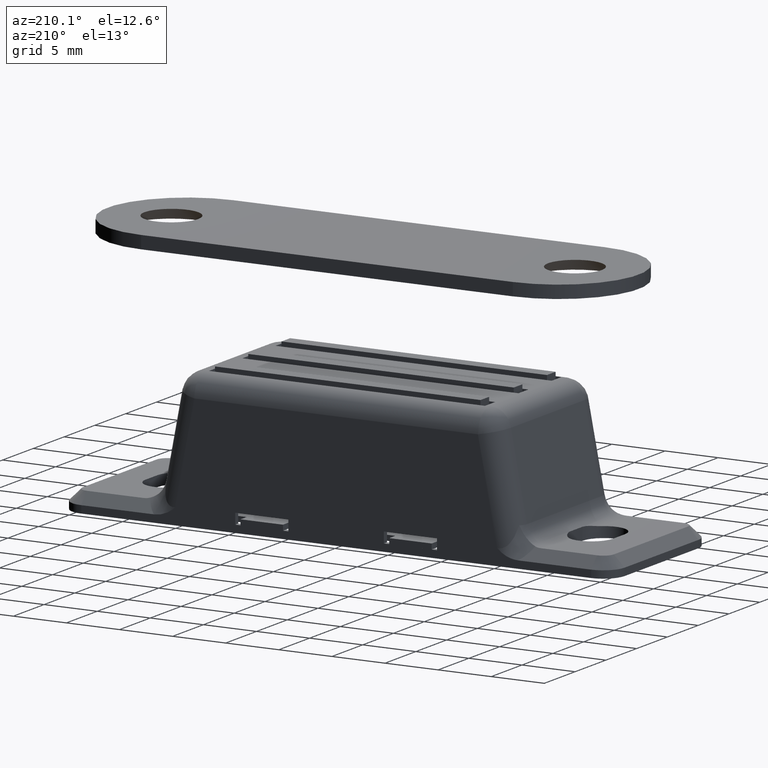
[diagram: clean part render]
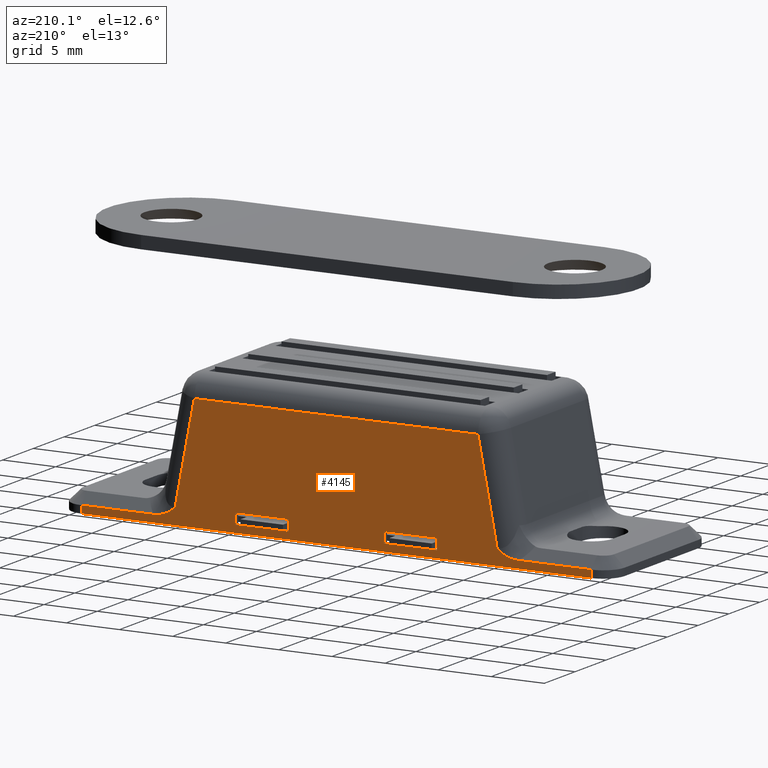
[diagram: same view with one face highlighted and labeled with its STEP entity id]
A machine part, auxiliary view. The second image highlights one B-rep face of the part: STEP entity #4145.
In plain terms, the highlighted planar face has unit normal (0, 1, 0).
Its self-contained STEP definition (entity closure, byte-faithful):
#132=B_SPLINE_CURVE_WITH_KNOTS('',3,(#6779,#6780,#6781,#6782,#6783,#6784,
#6785,#6786,#6787,#6788),.UNSPECIFIED.,.F.,.F.,(4,2,2,2,4),(-0.000830784899277134,
0.,0.0834906359114192,0.140468548631085,0.152463409243052),
 .UNSPECIFIED.);
#133=B_SPLINE_CURVE_WITH_KNOTS('',3,(#6834,#6835,#6836,#6837,#6838,#6839,
#6840,#6841,#6842,#6843),.UNSPECIFIED.,.F.,.F.,(4,2,2,2,4),(0.,0.0195673459543968,
0.111768831054857,0.246701387481364,0.248044702378409),.UNSPECIFIED.);
#151=FACE_BOUND('',#676,.T.);
#152=FACE_BOUND('',#677,.T.);
#435=FACE_OUTER_BOUND('',#675,.T.);
#675=EDGE_LOOP('',(#3338,#3339,#3340,#3341,#3342,#3343,#3344,#3345,#3346,
#3347));
#676=EDGE_LOOP('',(#3348,#3349,#3350,#3351));
#677=EDGE_LOOP('',(#3352,#3353,#3354,#3355));
#792=LINE('',#5754,#1232);
#800=LINE('',#5770,#1240);
#805=LINE('',#5781,#1245);
#808=LINE('',#5785,#1248);
#816=LINE('',#5802,#1256);
#824=LINE('',#5818,#1264);
#829=LINE('',#5829,#1269);
#832=LINE('',#5833,#1272);
#957=LINE('',#6578,#1397);
#971=LINE('',#6803,#1411);
#984=LINE('',#7004,#1424);
#985=LINE('',#7006,#1425);
#992=LINE('',#7024,#1432);
#996=LINE('',#7037,#1436);
#1000=LINE('',#7047,#1440);
#1006=LINE('',#7063,#1446);
#1232=VECTOR('',#4612,1.);
#1240=VECTOR('',#4624,5.);
#1245=VECTOR('',#4633,5.);
#1248=VECTOR('',#4638,0.999999999999999);
#1256=VECTOR('',#4652,1.);
#1264=VECTOR('',#4664,5.);
#1269=VECTOR('',#4673,5.);
#1272=VECTOR('',#4678,1.);
#1397=VECTOR('',#5073,26.70265445673);
#1411=VECTOR('',#5145,6.83764831845524);
#1424=VECTOR('',#5192,9.44510607651499);
#1425=VECTOR('',#5195,9.445106076515);
#1432=VECTOR('',#5216,6.83764831845524);
#1436=VECTOR('',#5232,0.699999999999996);
#1440=VECTOR('',#5242,48.);
#1446=VECTOR('',#5260,0.700000000000003);
#1672=VERTEX_POINT('',#5751);
#1673=VERTEX_POINT('',#5753);
#1679=VERTEX_POINT('',#5768);
#1683=VERTEX_POINT('',#5780);
#1688=VERTEX_POINT('',#5799);
#1689=VERTEX_POINT('',#5801);
#1695=VERTEX_POINT('',#5816);
#1699=VERTEX_POINT('',#5828);
#1833=VERTEX_POINT('',#6572);
#1834=VERTEX_POINT('',#6576);
#1856=VERTEX_POINT('',#6776);
#1857=VERTEX_POINT('',#6778);
#1862=VERTEX_POINT('',#6802);
#1864=VERTEX_POINT('',#6831);
#1865=VERTEX_POINT('',#6833);
#1883=VERTEX_POINT('',#7022);
#1886=VERTEX_POINT('',#7036);
#1889=VERTEX_POINT('',#7046);
#2060=EDGE_CURVE('',#1673,#1672,#792,.T.);
#2068=EDGE_CURVE('',#1672,#1679,#800,.T.);
#2073=EDGE_CURVE('',#1683,#1673,#805,.T.);
#2076=EDGE_CURVE('',#1679,#1683,#808,.T.);
#2084=EDGE_CURVE('',#1689,#1688,#816,.T.);
#2092=EDGE_CURVE('',#1688,#1695,#824,.T.);
#2097=EDGE_CURVE('',#1699,#1689,#829,.T.);
#2100=EDGE_CURVE('',#1695,#1699,#832,.T.);
#2312=EDGE_CURVE('',#1834,#1833,#957,.T.);
#2345=EDGE_CURVE('',#1856,#1857,#132,.T.);
#2353=EDGE_CURVE('',#1857,#1862,#971,.T.);
#2356=EDGE_CURVE('',#1864,#1865,#133,.T.);
#2384=EDGE_CURVE('',#1865,#1834,#984,.T.);
#2385=EDGE_CURVE('',#1833,#1856,#985,.T.);
#2394=EDGE_CURVE('',#1883,#1864,#992,.T.);
#2400=EDGE_CURVE('',#1862,#1886,#996,.T.);
#2405=EDGE_CURVE('',#1889,#1886,#1000,.T.);
#2414=EDGE_CURVE('',#1889,#1883,#1006,.T.);
#3338=ORIENTED_EDGE('',*,*,#2394,.F.);
#3339=ORIENTED_EDGE('',*,*,#2414,.F.);
#3340=ORIENTED_EDGE('',*,*,#2405,.T.);
#3341=ORIENTED_EDGE('',*,*,#2400,.F.);
#3342=ORIENTED_EDGE('',*,*,#2353,.F.);
#3343=ORIENTED_EDGE('',*,*,#2345,.F.);
#3344=ORIENTED_EDGE('',*,*,#2385,.F.);
#3345=ORIENTED_EDGE('',*,*,#2312,.F.);
#3346=ORIENTED_EDGE('',*,*,#2384,.F.);
#3347=ORIENTED_EDGE('',*,*,#2356,.F.);
#3348=ORIENTED_EDGE('',*,*,#2076,.T.);
#3349=ORIENTED_EDGE('',*,*,#2073,.T.);
#3350=ORIENTED_EDGE('',*,*,#2060,.T.);
#3351=ORIENTED_EDGE('',*,*,#2068,.T.);
#3352=ORIENTED_EDGE('',*,*,#2100,.T.);
#3353=ORIENTED_EDGE('',*,*,#2097,.T.);
#3354=ORIENTED_EDGE('',*,*,#2084,.T.);
#3355=ORIENTED_EDGE('',*,*,#2092,.T.);
#3931=PLANE('',#4475);
#4145=ADVANCED_FACE('',(#435,#151,#152),#3931,.T.);
#4475=AXIS2_PLACEMENT_3D('',#7064,#5261,#5262);
#4612=DIRECTION('',(-5.55111512312578E-16,0.,-1.));
#4624=DIRECTION('',(1.,0.,5.55111512312578E-17));
#4633=DIRECTION('',(-1.,0.,0.));
#4638=DIRECTION('',(-2.22044604925031E-15,0.,1.));
#4652=DIRECTION('',(0.,0.,-1.));
#4664=DIRECTION('',(1.,0.,0.));
#4673=DIRECTION('',(-1.,0.,0.));
#4678=DIRECTION('',(-5.55111512312578E-16,0.,1.));
#5073=DIRECTION('',(-1.,0.,0.));
#5145=DIRECTION('',(-1.,0.,-4.39449697392448E-16));
#5192=DIRECTION('',(-0.190808995376564,0.,0.98162718344766));
#5195=DIRECTION('',(-0.190808995376561,0.,-0.981627183447661));
#5216=DIRECTION('',(-1.,0.,1.60085246907249E-15));
#5232=DIRECTION('',(-2.61228946970624E-15,0.,-1.));
#5242=DIRECTION('',(-1.,0.,0.));
#5260=DIRECTION('',(2.61228946970625E-15,0.,1.));
#5261=DIRECTION('center_axis',(0.,1.,0.));
#5262=DIRECTION('ref_axis',(0.,0.,1.));
#5751=CARTESIAN_POINT('',(4.5,8.,0.7));
#5753=CARTESIAN_POINT('',(4.5,8.,1.7));
#5754=CARTESIAN_POINT('',(4.5,8.,4.05));
#5768=CARTESIAN_POINT('',(9.5,8.,0.700000000000001));
#5770=CARTESIAN_POINT('',(2.25,8.,0.700000000000001));
#5780=CARTESIAN_POINT('',(9.5,8.,1.7));
#5781=CARTESIAN_POINT('',(4.75,8.,1.7));
#5785=CARTESIAN_POINT('',(9.49999999999999,8.,3.55000000000001));
#5799=CARTESIAN_POINT('',(-9.5,8.,0.7));
#5801=CARTESIAN_POINT('',(-9.5,8.,1.7));
#5802=CARTESIAN_POINT('',(-9.5,8.,4.05));
#5816=CARTESIAN_POINT('',(-4.5,8.,0.7));
#5818=CARTESIAN_POINT('',(-4.75,8.,0.7));
#5828=CARTESIAN_POINT('',(-4.5,8.,1.7));
#5829=CARTESIAN_POINT('',(-2.25,8.,1.7));
#5833=CARTESIAN_POINT('',(-4.5,8.,3.55));
#6572=CARTESIAN_POINT('',(-13.351327228365,8.,10.8));
#6576=CARTESIAN_POINT('',(13.351327228365,8.,10.8));
#6578=CARTESIAN_POINT('',(-7.5,8.,10.8));
#6776=CARTESIAN_POINT('',(-15.1535384300499,8.,1.5284271247462));
#6778=CARTESIAN_POINT('',(-17.1627006096508,8.,0.700000000000011));
#6779=CARTESIAN_POINT('Ctrl Pts',(-15.1535384300499,8.,1.5284271247462));
#6780=CARTESIAN_POINT('Ctrl Pts',(-15.1555295956729,8.,1.52650249808559));
#6781=CARTESIAN_POINT('Ctrl Pts',(-15.1575229313619,8.,1.52458013210294));
#6782=CARTESIAN_POINT('Ctrl Pts',(-15.3600614449585,8.,1.32969738805635));
#6783=CARTESIAN_POINT('Ctrl Pts',(-15.6597999890247,8.,1.08548685813209));
#6784=CARTESIAN_POINT('Ctrl Pts',(-16.3581060619327,8.,0.796828116105838));
#6785=CARTESIAN_POINT('Ctrl Pts',(-16.6612287880149,8.,0.727340804495041));
#6786=CARTESIAN_POINT('Ctrl Pts',(-17.0325662619427,8.,0.702245836903092));
#6787=CARTESIAN_POINT('Ctrl Pts',(-17.0972780531119,8.,0.700044324227993));
#6788=CARTESIAN_POINT('Ctrl Pts',(-17.1620027541166,8.,0.70000000000001));
#6802=CARTESIAN_POINT('',(-24.,8.,0.699999999999996));
#6803=CARTESIAN_POINT('',(-6.5,8.,0.700000000000013));
#6831=CARTESIAN_POINT('',(17.1627006096508,8.00000000000001,0.700000000000009));
#6833=CARTESIAN_POINT('',(15.1535384300499,8.,1.52842712474621));
#6834=CARTESIAN_POINT('Ctrl Pts',(17.1620027541166,8.,0.700000000000015));
#6835=CARTESIAN_POINT('Ctrl Pts',(17.096778282896,8.,0.700044666476456));
#6836=CARTESIAN_POINT('Ctrl Pts',(17.0315670223395,8.,0.702279963302208));
#6837=CARTESIAN_POINT('Ctrl Pts',(16.6598602100972,8.,0.727592902119927));
#6838=CARTESIAN_POINT('Ctrl Pts',(16.3568442616036,8.,0.797196785633087));
#6839=CARTESIAN_POINT('Ctrl Pts',(15.6593118639686,8.,1.08591320123774));
#6840=CARTESIAN_POINT('Ctrl Pts',(15.3599643785022,8.,1.32979078548995));
#6841=CARTESIAN_POINT('Ctrl Pts',(15.1575229313619,8.,1.52458013210296));
#6842=CARTESIAN_POINT('Ctrl Pts',(15.1555295956729,8.,1.52650249808558));
#6843=CARTESIAN_POINT('Ctrl Pts',(15.1535384300499,8.,1.5284271247462));
#7004=CARTESIAN_POINT('',(13.3630556371956,8.,10.7396625672498));
#7006=CARTESIAN_POINT('',(-14.44186635291,8.,5.18966256724983));
#7022=CARTESIAN_POINT('',(24.,8.,0.700000000000003));
#7024=CARTESIAN_POINT('',(4.28940535785722,8.,0.700000000000035));
#7036=CARTESIAN_POINT('',(-24.,8.,0.));
#7037=CARTESIAN_POINT('',(-24.,8.,3.20000000000003));
#7046=CARTESIAN_POINT('',(24.,8.,0.));
#7047=CARTESIAN_POINT('',(-26.,8.,0.));
#7063=CARTESIAN_POINT('',(24.,8.,4.04999999999997));
#7064=CARTESIAN_POINT('Origin',(0.,8.,6.4));